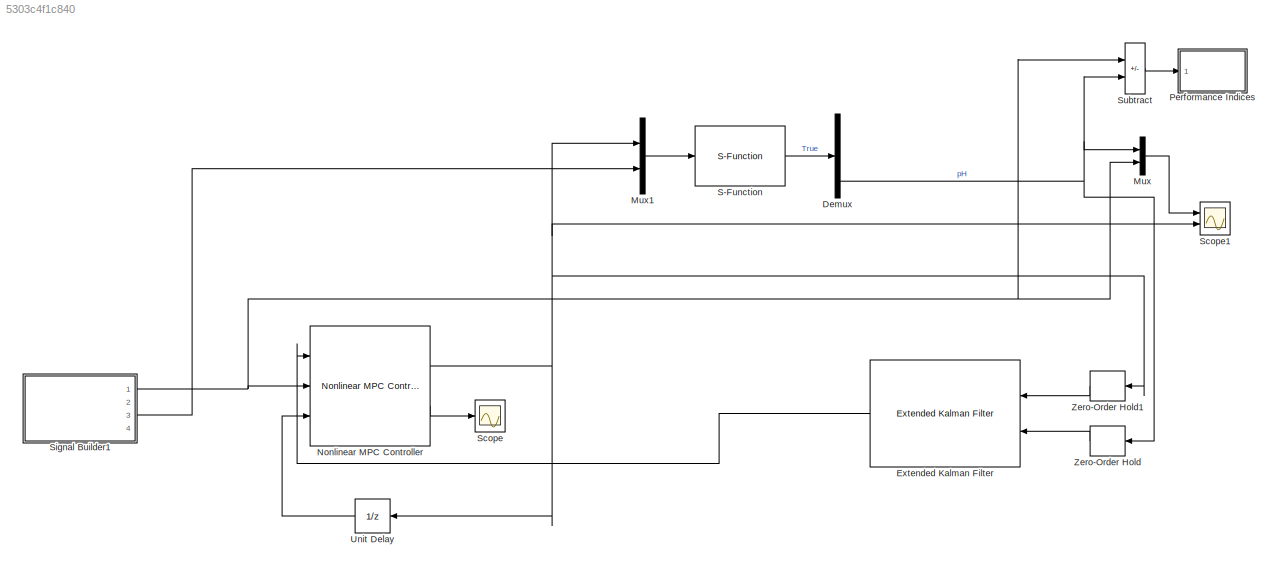
MODEL slx_5303c4f1c840
KIND model
CONFIG AbsTol = auto
CONFIG EnableMultiTasking = off
CONFIG FixedStep = auto
CONFIG MaxStep = auto
CONFIG MinStep = auto
CONFIG RelTol = 1e-3
CONFIG SampleTimeConstraint = Unconstrained
CONFIG SolverName = VariableStepAuto
CONFIG StartTime = 0.0
CONFIG StopTime = 100
BLOCK [Demux] Demux
  Ports = [1, 4]
BLOCK [Reference] Extended Kalman Filter  REF=sharedTrackingLibrary/Extended Kalman Filter
  Ports = [2, 1]
  SourceBlock = sharedTrackingLibrary/Extended Kalman Filter
  SourceProductBaseCode = CT,DR,TF,ID,LP,NV,AR,RO,RR,UV,VE
  SourceType = Extended Kalman Filter
BLOCK [Mux] Mux
  DisplayOption = bar
  Inputs = 2
  Ports = [2, 1]
BLOCK [Mux] Mux1
  DisplayOption = bar
  Inputs = 2
  Ports = [2, 1]
BLOCK [Reference] Nonlinear MPC Controller  REF=mpclib/Nonlinear MPC Controller  (lib defined in mdl_ae329e0e0455)
  Ports = [3, 2]
  SCDEnableBlockLinearizationSpecification = on
  SourceBlock = mpclib/Nonlinear MPC Controller
  SourceProductBaseCode = MP
  SourceType = NonlinearMPC
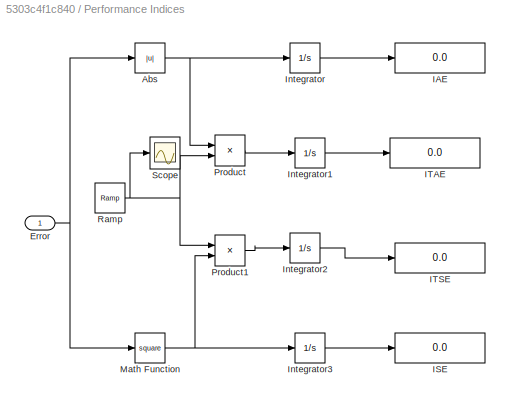
BLOCK [SubSystem] Performance Indices
  Ports = [1]
  RequestExecContextInheritance = off
BLOCK [Abs] Performance Indices/Abs
  SaturateOnIntegerOverflow = off
BLOCK [Inport] Performance Indices/Error
BLOCK [Display] Performance Indices/IAE
  Decimation = 1
  Ports = [1]
BLOCK [Display] Performance Indices/ISE
  Decimation = 1
  Ports = [1]
BLOCK [Display] Performance Indices/ITAE
  Decimation = 1
  Ports = [1]
BLOCK [Display] Performance Indices/ITSE
  Decimation = 1
  Ports = [1]
BLOCK [Integrator] Performance Indices/Integrator
  Ports = [1, 1]
BLOCK [Integrator] Performance Indices/Integrator1
  Ports = [1, 1]
BLOCK [Integrator] Performance Indices/Integrator2
  Ports = [1, 1]
BLOCK [Integrator] Performance Indices/Integrator3
  Ports = [1, 1]
BLOCK [Math] Performance Indices/Math Function
  Operator = square
  Ports = [1, 1]
  SignedPower = on
BLOCK [Product] Performance Indices/Product
  Ports = [2, 1]
  RndMeth = Zero
BLOCK [Product] Performance Indices/Product1
  Ports = [2, 1]
  RndMeth = Zero
BLOCK [Reference] Performance Indices/Ramp  REF=simulink/Sources/Ramp
  Ports = [0, 1]
  SourceBlock = simulink/Sources/Ramp
  SourceProductBaseCode = SL
  SourceType = Ramp
BLOCK [Scope] Performance Indices/Scope
  Floating = off
  NumInputPorts = 1
  Ports = [1]
  ScopeSpecificationString = Simulink.scopes.TimeScopeBlockCfg('CurrentConfiguration', extmgr.ConfigurationSet(extmgr.Configuration('Core','General UI',true),extmgr.Configuration('Core','Source UI',true),extmgr.Configuration('Sources','WiredSimulink',true,'DataLoggingLimitDataPoints',true,'DataLoggingSaveFormat','Array','DataLoggingDecimation','1','DataLoggingDecimateData',true),extmgr.Configuration('Visuals','Time Domain',tr...<+878ch>
BLOCK [S-Function] S-Function
  EnableBusSupport = off
  FunctionName = pH_sfun
  Ports = [1, 1]
  SFcnIsStateOwnerBlock = off
  SFunctionDeploymentMode = off
BLOCK [Scope] Scope
  Floating = off
  NumInputPorts = 1
  Ports = [1]
  ScopeSpecificationString = Simulink.scopes.TimeScopeBlockCfg('CurrentConfiguration', extmgr.ConfigurationSet(extmgr.Configuration('Core','General UI',true),extmgr.Configuration('Core','Source UI',true),extmgr.Configuration('Sources','WiredSimulink',true,'DataLoggingVariableName','ScopeData2'),extmgr.Configuration('Visuals','Time Domain',true,'SerializedDisplays',{struct('MinYLimReal','-3.00000','MaxYLimReal','-1.00000','YLa...<+1395ch>
BLOCK [Scope] Scope1
  Floating = off
  NumInputPorts = 2
  Ports = [2]
  ScopeSpecificationString = Simulink.scopes.TimeScopeBlockCfg('CurrentConfiguration', extmgr.ConfigurationSet(extmgr.Configuration('Core','General UI',true),extmgr.Configuration('Core','Source UI',true),extmgr.Configuration('Sources','WiredSimulink',true,'DataLoggingVariableName','ScopeData1'),extmgr.Configuration('Visuals','Time Domain',true,'SerializedDisplays',{struct('MinYLimReal','2.68485','MaxYLimReal','7.47946','YLabe...<+2006ch>
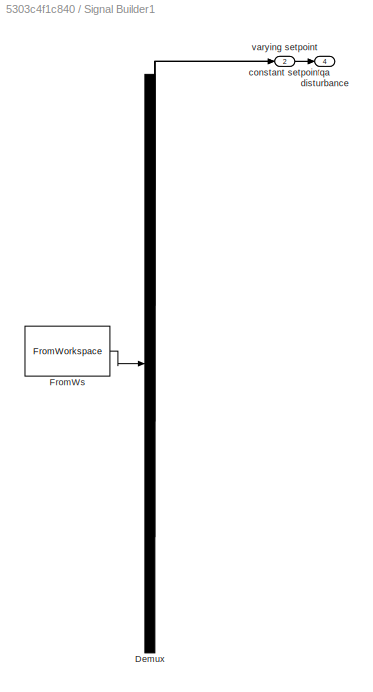
BLOCK [SubSystem] Signal Builder1
  ClipboardFcn = sigbuilder_block('clipboard');
  CloseFcn = sigbuilder_block('close');
  ContinueFcn = sigbuilder_block('continue');
  CopyFcn = sigbuilder_block('copy');
  DeleteFcn = sigbuilder_block('delete');
  LoadFcn = sigbuilder_block('load');
  MaskHideContents = on
  ModelCloseFcn = sigbuilder_block('modelClose');
  NameChangeFcn = sigbuilder_block('namechange');
  OpenFcn = sigbuilder_block('open',[379.5 6 575 469 ]);
  PauseFcn = sigbuilder_block('pause');
  Ports = [0, 4]
  PreSaveFcn = sigbuilder_block('preSave');
  RequestExecContextInheritance = off
  StartFcn = sigbuilder_block('start');
  StopFcn = sigbuilder_block('stop');
  Tag = STV Subsys
BLOCK [Demux] Signal Builder1/Demux
  DisplayOption = none
  Ports = [1, 4]
  Tag = STV Demux
BLOCK [FromWorkspace] Signal Builder1/FromWs
  Tag = STV FromWs
  VariableName = tuvar
BLOCK [Outport] Signal Builder1/constant setpoint
  Tag = STV Outport
  VectorParamsAs1DForOutWhenUnconnected = off
BLOCK [Outport] Signal Builder1/disturbance
  Port = 4
  Tag = STV Outport
BLOCK [Outport] Signal Builder1/qa
  Port = 3
  Tag = STV Outport
BLOCK [Outport] Signal Builder1/varying setpoint
  Port = 2
  Tag = STV Outport
  VectorParamsAs1DForOutWhenUnconnected = off
BLOCK [Sum] Subtract
  IconShape = rectangular
  Inputs = +-
  Ports = [2, 1]
BLOCK [UnitDelay] Unit Delay
  HasFrameUpgradeWarning = on
  InitialCondition = u0
  NameLocation = top
  SampleTime = -1
BLOCK [ZeroOrderHold] Zero-Order Hold
  SampleTime = Ts
BLOCK [ZeroOrderHold] Zero-Order Hold1
  SampleTime = Ts
NET Demux:4 -> Mux:1, Subtract:2, Zero-Order Hold:1
LINE Extended Kalman Filter:1 -> Nonlinear MPC Controller:1
LINE Mux1:1 -> S-Function:1
LINE Mux:1 -> Scope1:1
NET Nonlinear MPC Controller:1 -> Mux1:1, Scope1:2, Unit Delay:1, Zero-Order Hold1:1
LINE Nonlinear MPC Controller:2 -> Scope:1
NET Performance Indices/Abs:1 -> Performance Indices/Integrator:1, Performance Indices/Product:1
NET Performance Indices/Error:1 -> Performance Indices/Abs:1, Performance Indices/Math Function:1
LINE Performance Indices/Integrator1:1 -> Performance Indices/ITAE:1
LINE Performance Indices/Integrator2:1 -> Performance Indices/ITSE:1
LINE Performance Indices/Integrator3:1 -> Performance Indices/ISE:1
LINE Performance Indices/Integrator:1 -> Performance Indices/IAE:1
NET Performance Indices/Math Function:1 -> Performance Indices/Integrator3:1, Performance Indices/Product1:2
LINE Performance Indices/Product1:1 -> Performance Indices/Integrator2:1
LINE Performance Indices/Product:1 -> Performance Indices/Integrator1:1
NET Performance Indices/Ramp:1 -> Performance Indices/Product1:1, Performance Indices/Product:2, Performance Indices/Scope:1
LINE S-Function:1 -> Demux:1
NET Signal Builder1:1 -> Mux:2, Nonlinear MPC Controller:2, Subtract:1
LINE Signal Builder1:3 -> Mux1:2
LINE Subtract:1 -> Performance Indices:1
LINE Unit Delay:1 -> Nonlinear MPC Controller:3
LINE Zero-Order Hold1:1 -> Extended Kalman Filter:1
LINE Zero-Order Hold:1 -> Extended Kalman Filter:2
note: NET lines group one-source signal fan-out (src -> all destinations, sorted); 1:1 wires keep LINE
